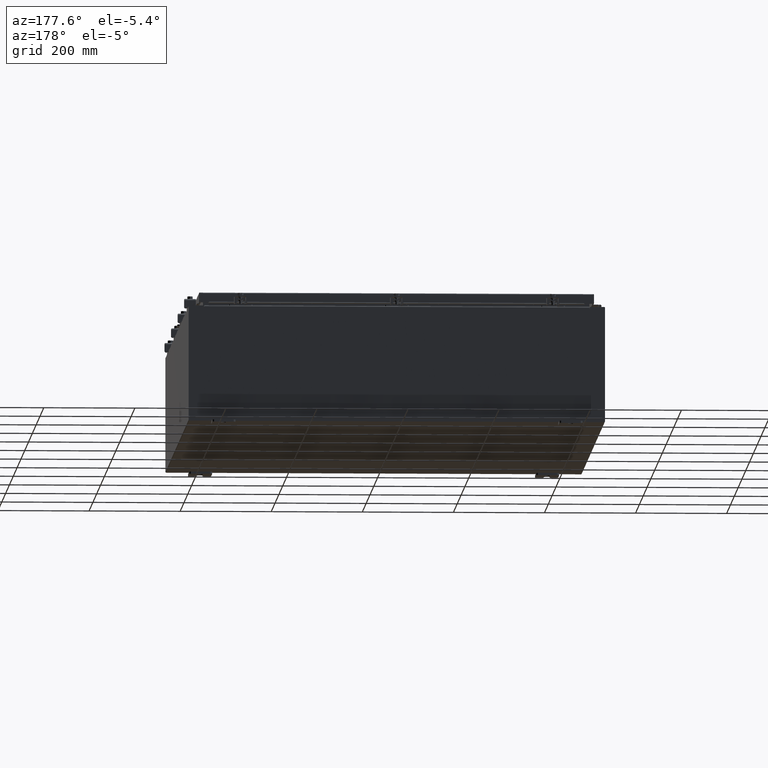
[diagram: clean part render]
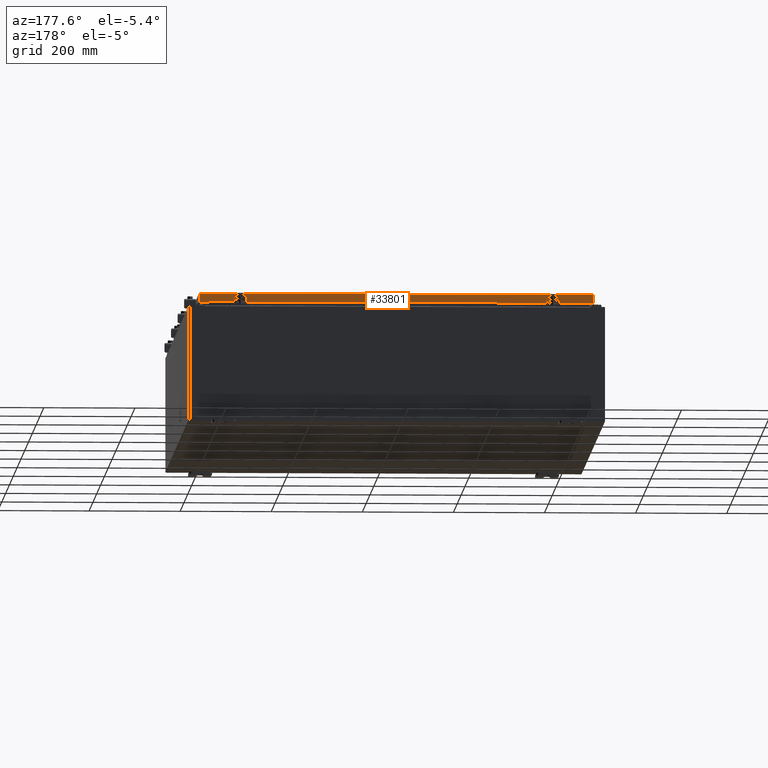
[diagram: same view with one face highlighted and labeled with its STEP entity id]
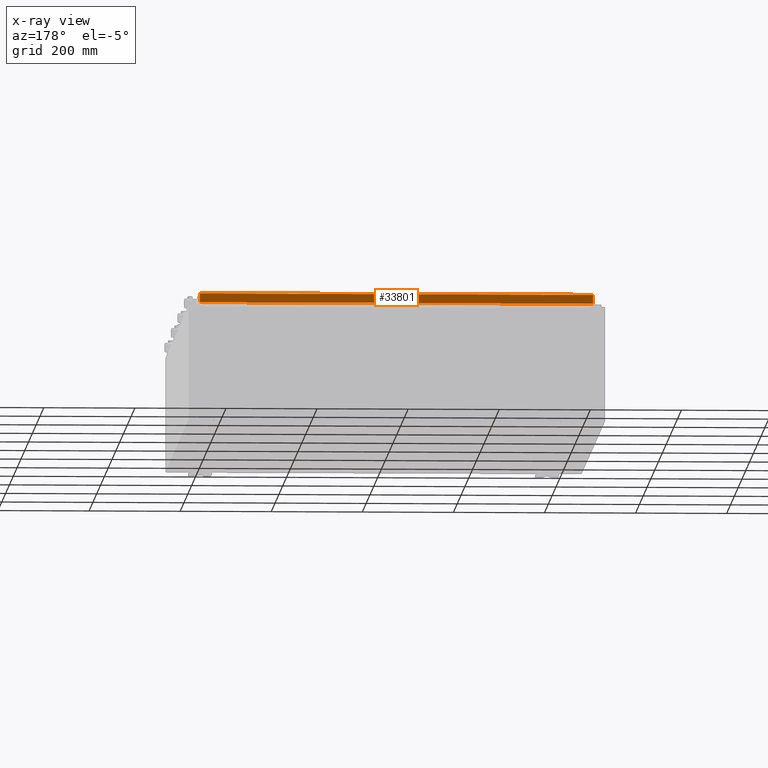
[diagram: x-ray of the same camera — body ghosted, the highlighted face saturated]
A machine part, auxiliary view. The second image highlights one B-rep face of the part: STEP entity #33801.
The next image is the same camera in x-ray: the body ghosted, the highlighted face saturated — about 0% of this face is hidden behind the body in this view.
In plain terms, the highlighted planar face has unit normal (0, -1, -0).
Its self-contained STEP definition (entity closure, byte-faithful):
#1271 = DIRECTION ( 'NONE',  ( 6.989207801985677300E-031, -1.000000000000000000, -5.637761885544689500E-015 ) ) ;
#1334 = VERTEX_POINT ( 'NONE', #13526 ) ;
#2632 = LINE ( 'NONE', #21978, #12636 ) ;
#5150 = VERTEX_POINT ( 'NONE', #5914 ) ;
#5210 = CARTESIAN_POINT ( 'NONE',  ( -16.98915786437626400, 23.09400000000000800, -0.8500000000000043100 ) ) ;
#5529 = VECTOR ( 'NONE', #36878, 39.37007874015748100 ) ;
#5914 = CARTESIAN_POINT ( 'NONE',  ( 16.23915786437626400, 23.09400000000000100, -0.8500000000000086400 ) ) ;
#6889 = VECTOR ( 'NONE', #7345, 39.37007874015748100 ) ;
#7345 = DIRECTION ( 'NONE',  ( 0.0000000000000000000, 5.637761885544689500E-015, -1.000000000000000000 ) ) ;
#7948 = AXIS2_PLACEMENT_3D ( 'NONE', #26803, #1271, #31116 ) ;
#10533 = DIRECTION ( 'NONE',  ( -1.000000000000000000, -6.989207801985679100E-031, -3.922586267643529200E-045 ) ) ;
#12199 = LINE ( 'NONE', #18275, #34885 ) ;
#12241 = VECTOR ( 'NONE', #10533, 39.37007874015748100 ) ;
#12636 = VECTOR ( 'NONE', #39044, 39.37007874015748100 ) ;
#13526 = CARTESIAN_POINT ( 'NONE',  ( 16.98915786437627100, 23.09400000000000500, -0.08769999999999589200 ) ) ;
#14107 = ORIENTED_EDGE ( 'NONE', *, *, #37810, .T. ) ;
#15368 = EDGE_CURVE ( 'NONE', #17719, #5150, #2632, .T. ) ;
#15538 = CARTESIAN_POINT ( 'NONE',  ( -16.98915786437626400, 23.09400000000000500, -0.07470000000000015500 ) ) ;
#16535 = VERTEX_POINT ( 'NONE', #47670 ) ;
#17063 = CARTESIAN_POINT ( 'NONE',  ( -16.98915786437626400, 23.09400000000000500, -0.08769999999999589200 ) ) ;
#17210 = VERTEX_POINT ( 'NONE', #5210 ) ;
#17719 = VERTEX_POINT ( 'NONE', #35196 ) ;
#18275 = CARTESIAN_POINT ( 'NONE',  ( -17.07799999999999600, 23.09400000000000800, -0.8500000000000043100 ) ) ;
#21267 = ORIENTED_EDGE ( 'NONE', *, *, #29429, .F. ) ;
#21642 = EDGE_CURVE ( 'NONE', #5150, #16535, #23331, .T. ) ;
#21978 = CARTESIAN_POINT ( 'NONE',  ( -16.23915786437625600, 23.09400000000000100, -0.8500000000000086400 ) ) ;
#22037 = ORIENTED_EDGE ( 'NONE', *, *, #29327, .F. ) ;
#23331 = LINE ( 'NONE', #33110, #46126 ) ;
#24338 = VERTEX_POINT ( 'NONE', #17063 ) ;
#26803 = CARTESIAN_POINT ( 'NONE',  ( 0.0000000000000000000, 23.09400000000000500, 1.311287036958846300E-013 ) ) ;
#27498 = ORIENTED_EDGE ( 'NONE', *, *, #47141, .F. ) ;
#28000 = FACE_OUTER_BOUND ( 'NONE', #30525, .T. ) ;
#29327 = EDGE_CURVE ( 'NONE', #1334, #24338, #43652, .T. ) ;
#29429 = EDGE_CURVE ( 'NONE', #24338, #17210, #49671, .T. ) ;
#30525 = EDGE_LOOP ( 'NONE', ( #22037, #14107, #54736, #50296, #27498, #21267 ) ) ;
#31116 = DIRECTION ( 'NONE',  ( 0.0000000000000000000, 5.637761885544689500E-015, -1.000000000000000000 ) ) ;
#33110 = CARTESIAN_POINT ( 'NONE',  ( -17.07799999999999600, 23.09400000000000800, -0.8500000000000043100 ) ) ;
#33801 = ADVANCED_FACE ( 'NONE', ( #28000 ), #52453, .F. ) ;
#34885 = VECTOR ( 'NONE', #43925, 39.37007874015748100 ) ;
#35196 = CARTESIAN_POINT ( 'NONE',  ( -16.23915786437625600, 23.09400000000000100, -0.8500000000000086400 ) ) ;
#36878 = DIRECTION ( 'NONE',  ( -0.0000000000000000000, 5.637761885544689500E-015, -1.000000000000000000 ) ) ;
#37810 = EDGE_CURVE ( 'NONE', #1334, #16535, #52321, .T. ) ;
#39044 = DIRECTION ( 'NONE',  ( 1.000000000000000000, -0.0000000000000000000, -0.0000000000000000000 ) ) ;
#43652 = LINE ( 'NONE', #53331, #12241 ) ;
#43925 = DIRECTION ( 'NONE',  ( 1.000000000000000000, 8.758115402030108600E-047, 1.239713195391617600E-016 ) ) ;
#45821 = CARTESIAN_POINT ( 'NONE',  ( 16.98915786437627100, 23.09400000000000500, 1.311287036958846300E-013 ) ) ;
#46033 = DIRECTION ( 'NONE',  ( 1.000000000000000000, 8.758115402030108600E-047, 1.239713195391617600E-016 ) ) ;
#46126 = VECTOR ( 'NONE', #46033, 39.37007874015748100 ) ;
#47141 = EDGE_CURVE ( 'NONE', #17210, #17719, #12199, .T. ) ;
#47670 = CARTESIAN_POINT ( 'NONE',  ( 16.98915786437627100, 23.09400000000000800, -0.8499999999999999800 ) ) ;
#49671 = LINE ( 'NONE', #15538, #5529 ) ;
#50296 = ORIENTED_EDGE ( 'NONE', *, *, #15368, .F. ) ;
#52321 = LINE ( 'NONE', #45821, #6889 ) ;
#52453 = PLANE ( 'NONE',  #7948 ) ;
#53331 = CARTESIAN_POINT ( 'NONE',  ( -17.07799999999999600, 23.09400000000000500, -0.08769999999999589200 ) ) ;
#54736 = ORIENTED_EDGE ( 'NONE', *, *, #21642, .F. ) ;